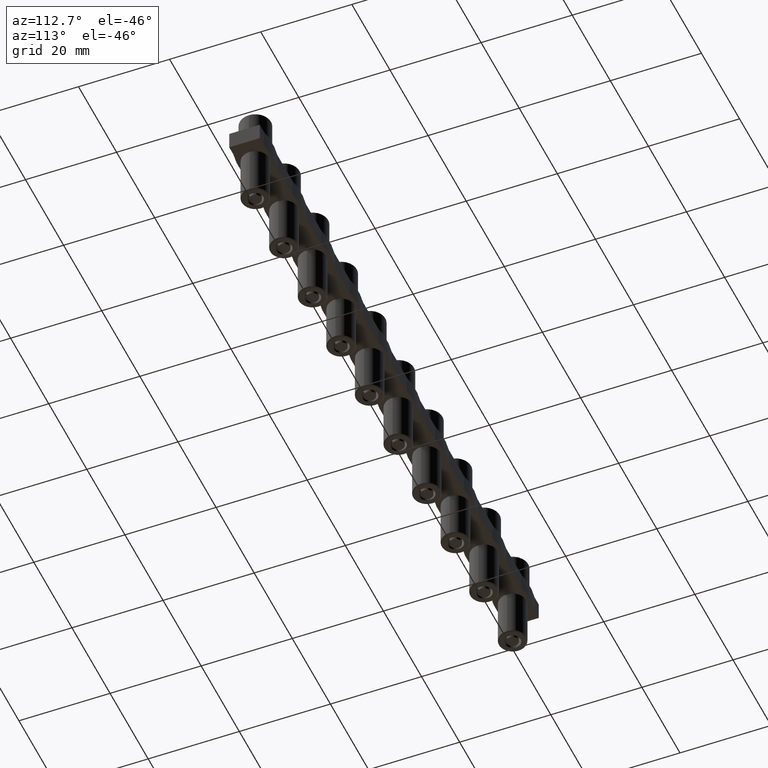
[diagram: clean part render]
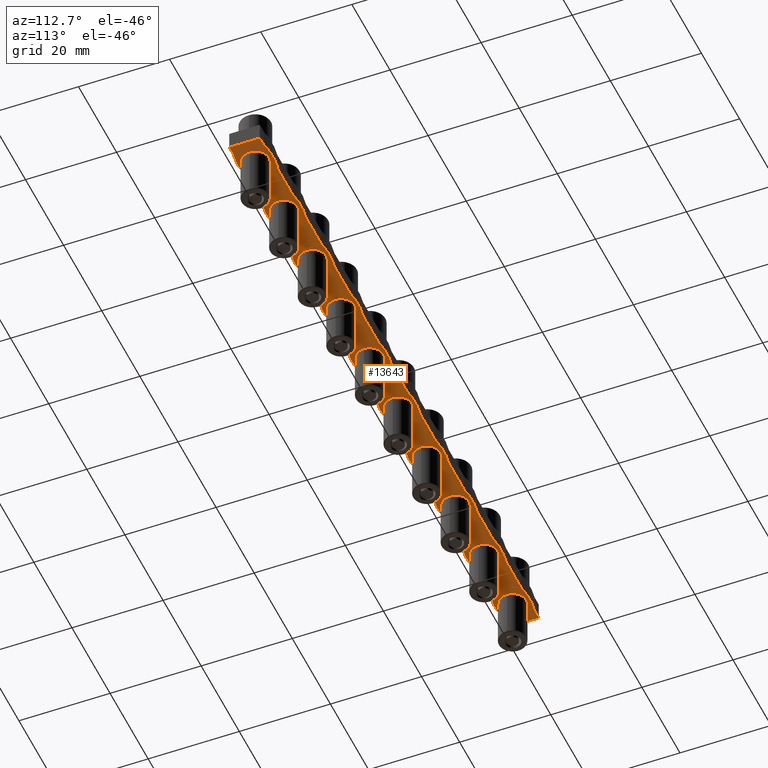
[diagram: same view with one face highlighted and labeled with its STEP entity id]
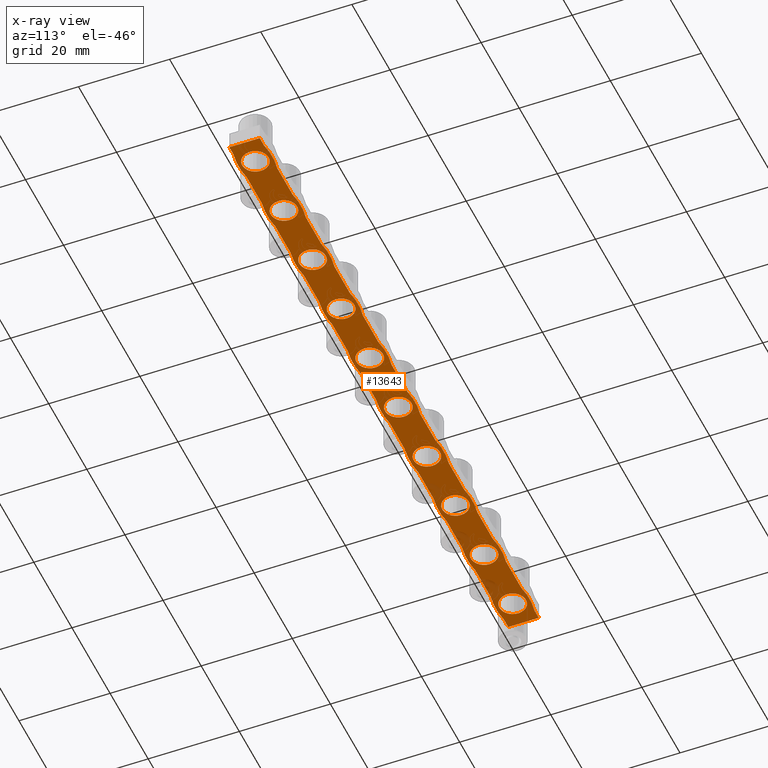
[diagram: x-ray of the same camera — body ghosted, the highlighted face saturated]
A machine part, auxiliary view. The second image highlights one B-rep face of the part: STEP entity #13643.
The next image is the same camera in x-ray: the body ghosted, the highlighted face saturated — about 4% of this face is hidden behind the body in this view.
In plain terms, the highlighted planar face has unit normal (0, 0, -1).
Its self-contained STEP definition (entity closure, byte-faithful):
#1854 = DIRECTION ( 'NONE',  ( -0.0000000000000000000, 0.0000000000000000000, -1.000000000000000000 ) ) ;
#1855 = DIRECTION ( 'NONE',  ( -1.000000000000000000, -2.491358183583711900E-016, -0.0000000000000000000 ) ) ;
#1856 = DIRECTION ( 'NONE',  ( -0.0000000000000000000, 0.0000000000000000000, -1.000000000000000000 ) ) ;
#1857 = LINE ( 'NONE', #1893, #11888 ) ;
#1859 = LINE ( 'NONE', #1890, #11859 ) ;
#1860 = DIRECTION ( 'NONE',  ( 1.000000000000000000, 7.360919982926462300E-015, 0.0000000000000000000 ) ) ;
#1861 = DIRECTION ( 'NONE',  ( -1.000000000000000000, -2.491358183583711900E-016, -0.0000000000000000000 ) ) ;
#1864 = CARTESIAN_POINT ( 'NONE',  ( 45.00167760659078200, 1.230004896535145500E-013, -4.799999999982577300 ) ) ;
#1867 = CARTESIAN_POINT ( 'NONE',  ( 105.0016776065907700, 3.652635957813867600E-013, -4.799999999982577300 ) ) ;
#1868 = DIRECTION ( 'NONE',  ( -0.0000000000000000000, 0.0000000000000000000, -1.000000000000000000 ) ) ;
#1869 = DIRECTION ( 'NONE',  ( 1.000000000000000000, 2.491358183583643400E-016, 0.0000000000000000000 ) ) ;
#1871 = DIRECTION ( 'NONE',  ( 1.000000000000000000, 2.491358183583728700E-016, 0.0000000000000000000 ) ) ;
#1872 = LINE ( 'NONE', #1892, #11858 ) ;
#1874 = DIRECTION ( 'NONE',  ( 1.000000000000000000, -0.0000000000000000000, 0.0000000000000000000 ) ) ;
#1879 = LINE ( 'NONE', #1880, #11819 ) ;
#1880 = CARTESIAN_POINT ( 'NONE',  ( 152.8500000000016400, 3.350000000000404200, -4.800000000000001600 ) ) ;
#1881 = DIRECTION ( 'NONE',  ( -4.822322090079283200E-017, 1.000000000000000000, 0.0000000000000000000 ) ) ;
#1882 = DIRECTION ( 'NONE',  ( -2.009125974575783600E-016, 1.000000000000000000, 0.0000000000000000000 ) ) ;
#1885 = CARTESIAN_POINT ( 'NONE',  ( 75.00000000000164800, -13.97500000000454500, -4.800000000000001600 ) ) ;
#1890 = CARTESIAN_POINT ( 'NONE',  ( -47.85000000000001600, 3.350000000000150200, -4.800000000000001600 ) ) ;
#1892 = CARTESIAN_POINT ( 'NONE',  ( 140.7000000000016700, 7.221084286607387900, -4.800000000000001600 ) ) ;
#1893 = CARTESIAN_POINT ( 'NONE',  ( -5.700000000000000200, 7.221084286606899400, -4.800000000000001600 ) ) ;
#1895 = CARTESIAN_POINT ( 'NONE',  ( 45.00000000000164800, -13.97500000000466600, -4.800000000000001600 ) ) ;
#1901 = DIRECTION ( 'NONE',  ( -0.0000000000000000000, 0.0000000000000000000, -1.000000000000000000 ) ) ;
#1905 = DIRECTION ( 'NONE',  ( 1.000000000000000000, 7.360919982926462300E-015, 0.0000000000000000000 ) ) ;
#1906 = DIRECTION ( 'NONE',  ( -0.0000000000000000000, 0.0000000000000000000, -1.000000000000000000 ) ) ;
#1909 = DIRECTION ( 'NONE',  ( -0.0000000000000000000, 0.0000000000000000000, -1.000000000000000000 ) ) ;
#1910 = DIRECTION ( 'NONE',  ( 1.000000000000000000, 2.944367993170585100E-015, 0.0000000000000000000 ) ) ;
#1932 = CARTESIAN_POINT ( 'NONE',  ( 15.00000000000164800, -13.97500000000478700, -4.800000000000001600 ) ) ;
#1942 = DIRECTION ( 'NONE',  ( 1.000000000000000000, -1.570329596357645900E-015, 0.0000000000000000000 ) ) ;
#1945 = CARTESIAN_POINT ( 'NONE',  ( 135.0000000000016500, -13.97500000000430400, -4.800000000000001600 ) ) ;
#1950 = LINE ( 'NONE', #1957, #11886 ) ;
#1951 = CARTESIAN_POINT ( 'NONE',  ( 197.8500000000016700, 3.350000000000585800, -4.800000000000001600 ) ) ;
#1954 = CARTESIAN_POINT ( 'NONE',  ( 105.0000000000016500, -13.97500000000442500, -4.800000000000001600 ) ) ;
#1956 = DIRECTION ( 'NONE',  ( -1.000000000000000000, -2.491358183583711900E-016, -0.0000000000000000000 ) ) ;
#1957 = CARTESIAN_POINT ( 'NONE',  ( 182.8500000000016700, 3.350000000000525900, -4.800000000000001600 ) ) ;
#1964 = LINE ( 'NONE', #1978, #11870 ) ;
#1965 = DIRECTION ( 'NONE',  ( -0.0000000000000000000, 0.0000000000000000000, -1.000000000000000000 ) ) ;
#1968 = DIRECTION ( 'NONE',  ( -1.000000000000000000, -2.491358183583711900E-016, -0.0000000000000000000 ) ) ;
#1972 = DIRECTION ( 'NONE',  ( 1.000000000000000000, 7.360919982926462300E-015, 0.0000000000000000000 ) ) ;
#1975 = DIRECTION ( 'NONE',  ( 1.000000000000000000, 2.491358183583711900E-016, 0.0000000000000000000 ) ) ;
#1978 = CARTESIAN_POINT ( 'NONE',  ( 197.8500000000016700, -3.349999999999414800, -4.800000000000001600 ) ) ;
#1980 = LINE ( 'NONE', #1951, #11855 ) ;
#1987 = DIRECTION ( 'NONE',  ( -0.0000000000000000000, 0.0000000000000000000, -1.000000000000000000 ) ) ;
#1989 = DIRECTION ( 'NONE',  ( -0.0000000000000000000, 0.0000000000000000000, -1.000000000000000000 ) ) ;
#1990 = DIRECTION ( 'NONE',  ( 1.000000000000000000, 5.594299187024113300E-015, 0.0000000000000000000 ) ) ;
#1992 = DIRECTION ( 'NONE',  ( -1.000000000000000000, -2.491358183583711900E-016, -0.0000000000000000000 ) ) ;
#2005 = LINE ( 'NONE', #2025, #11837 ) ;
#2018 = CARTESIAN_POINT ( 'NONE',  ( 75.00167760659077500, 2.441320427174506600E-013, -4.799999999982577300 ) ) ;
#2020 = CARTESIAN_POINT ( 'NONE',  ( 30.00000000000165200, -13.97500000000472700, -4.800000000000001600 ) ) ;
#2025 = CARTESIAN_POINT ( 'NONE',  ( 92.85000000000167100, 3.350000000000162200, -4.800000000000001600 ) ) ;
#2026 = DIRECTION ( 'NONE',  ( 1.000000000000000000, 2.491358183583643400E-016, 0.0000000000000000000 ) ) ;
#2030 = DIRECTION ( 'NONE',  ( 1.000000000000000000, 2.491358183583813500E-016, 0.0000000000000000000 ) ) ;
#2033 = DIRECTION ( 'NONE',  ( -0.0000000000000000000, -0.0000000000000000000, 1.000000000000000000 ) ) ;
#2043 = CARTESIAN_POINT ( 'NONE',  ( 5.128276275852789100E-015, -13.97500000000478900, -4.800000000000001600 ) ) ;
#2050 = DIRECTION ( 'NONE',  ( -0.0000000000000000000, 0.0000000000000000000, -1.000000000000000000 ) ) ;
#2055 = DIRECTION ( 'NONE',  ( -1.000000000000000000, 2.649931193853527400E-015, 0.0000000000000000000 ) ) ;
#2058 = CARTESIAN_POINT ( 'NONE',  ( 135.0016776065907600, 4.863951488453228700E-013, -4.799999999982577300 ) ) ;
#3259 = CARTESIAN_POINT ( 'NONE',  ( 92.85000000000167100, -3.349999999999838400, -4.800000000000001600 ) ) ;
#3262 = CARTESIAN_POINT ( 'NONE',  ( 122.8500000000016700, 3.350000000000283400, -4.800000000000001600 ) ) ;
#3264 = LINE ( 'NONE', #3296, #11824 ) ;
#3270 = LINE ( 'NONE', #3259, #11817 ) ;
#3279 = CARTESIAN_POINT ( 'NONE',  ( -62.85000000000001600, 3.350000000000084500, -4.800000000000001600 ) ) ;
#3286 = LINE ( 'NONE', #3290, #11816 ) ;
#3288 = LINE ( 'NONE', #3262, #11818 ) ;
#3289 = DIRECTION ( 'NONE',  ( -1.000000000000000000, -2.491358183583711900E-016, -0.0000000000000000000 ) ) ;
#3290 = CARTESIAN_POINT ( 'NONE',  ( -47.85000000000001600, -3.349999999999858400, -4.800000000000001600 ) ) ;
#3294 = DIRECTION ( 'NONE',  ( -1.000000000000000000, 0.0000000000000000000, -0.0000000000000000000 ) ) ;
#3296 = CARTESIAN_POINT ( 'NONE',  ( 107.8500000000016700, 3.350000000000222600, -4.800000000000001600 ) ) ;
#3301 = LINE ( 'NONE', #3279, #11788 ) ;
#3314 = DIRECTION ( 'NONE',  ( -0.0000000000000000000, 0.0000000000000000000, -1.000000000000000000 ) ) ;
#3316 = DIRECTION ( 'NONE',  ( 1.000000000000000000, 2.491358183583711900E-016, 0.0000000000000000000 ) ) ;
#3318 = DIRECTION ( 'NONE',  ( 1.000000000000000000, 2.491358183583712400E-016, 0.0000000000000000000 ) ) ;
#3322 = DIRECTION ( 'NONE',  ( 1.000000000000000000, -0.0000000000000000000, 0.0000000000000000000 ) ) ;
#3323 = CARTESIAN_POINT ( 'NONE',  ( 15.00167760659078200, 1.868936589578456200E-015, -4.799999999982577300 ) ) ;
#3330 = EDGE_LOOP ( 'NONE', ( #5128, #5119 ) ) ;
#3331 = EDGE_LOOP ( 'NONE', ( #5121, #5093 ) ) ;
#3333 = EDGE_LOOP ( 'NONE', ( #5188, #5158 ) ) ;
#3338 = EDGE_LOOP ( 'NONE', ( #5131, #5110 ) ) ;
#3373 = EDGE_LOOP ( 'NONE', ( #5130, #5084 ) ) ;
#3378 = EDGE_LOOP ( 'NONE', ( #5075, #5078 ) ) ;
#3379 = EDGE_LOOP ( 'NONE', ( #5120, #5142 ) ) ;
#3380 = EDGE_LOOP ( 'NONE', ( #5123, #5118, #5109, #5116, #5106, #5114, #5127, #5076, #5111, #5102, #5085, #5129, #5135, #5137, #5079, #5086, #5099, #5136, #5126, #5104, #5101, #5122, #5091, #5094, #5095, #5096, #5125, #5090, #5103, #5083, #5117, #5087, #5081, #5082, #5124, #5100, #5148, #5132, #5098, #5112, #5113, #5143, #5149, #5108 ) ) ;
#3381 = EDGE_LOOP ( 'NONE', ( #5133, #5089 ) ) ;
#3382 = EDGE_LOOP ( 'NONE', ( #5168, #5243 ) ) ;
#3383 = EDGE_LOOP ( 'NONE', ( #5175, #5163 ) ) ;
#4051 = VERTEX_POINT ( 'NONE', #17824 ) ;
#4052 = VERTEX_POINT ( 'NONE', #17827 ) ;
#4058 = VERTEX_POINT ( 'NONE', #17829 ) ;
#4059 = VERTEX_POINT ( 'NONE', #17841 ) ;
#4060 = VERTEX_POINT ( 'NONE', #17838 ) ;
#4061 = VERTEX_POINT ( 'NONE', #17843 ) ;
#4062 = VERTEX_POINT ( 'NONE', #17852 ) ;
#4063 = VERTEX_POINT ( 'NONE', #17844 ) ;
#4064 = VERTEX_POINT ( 'NONE', #17849 ) ;
#4065 = VERTEX_POINT ( 'NONE', #17805 ) ;
#4066 = VERTEX_POINT ( 'NONE', #17859 ) ;
#4067 = VERTEX_POINT ( 'NONE', #17854 ) ;
#4068 = VERTEX_POINT ( 'NONE', #17855 ) ;
#4069 = VERTEX_POINT ( 'NONE', #17856 ) ;
#4070 = VERTEX_POINT ( 'NONE', #17797 ) ;
#4072 = VERTEX_POINT ( 'NONE', #17918 ) ;
#4073 = VERTEX_POINT ( 'NONE', #17884 ) ;
#4075 = VERTEX_POINT ( 'NONE', #17881 ) ;
#4076 = VERTEX_POINT ( 'NONE', #17882 ) ;
#4077 = VERTEX_POINT ( 'NONE', #17874 ) ;
#4078 = VERTEX_POINT ( 'NONE', #17875 ) ;
#4079 = VERTEX_POINT ( 'NONE', #17908 ) ;
#4085 = VERTEX_POINT ( 'NONE', #17870 ) ;
#4087 = VERTEX_POINT ( 'NONE', #17873 ) ;
#4088 = VERTEX_POINT ( 'NONE', #17894 ) ;
#4089 = VERTEX_POINT ( 'NONE', #17887 ) ;
#4091 = VERTEX_POINT ( 'NONE', #17911 ) ;
#4092 = VERTEX_POINT ( 'NONE', #17903 ) ;
#4094 = VERTEX_POINT ( 'NONE', #17864 ) ;
#4095 = VERTEX_POINT ( 'NONE', #17876 ) ;
#4098 = VERTEX_POINT ( 'NONE', #17883 ) ;
#4100 = VERTEX_POINT ( 'NONE', #17923 ) ;
#4102 = VERTEX_POINT ( 'NONE', #17910 ) ;
#4103 = VERTEX_POINT ( 'NONE', #17862 ) ;
#4104 = VERTEX_POINT ( 'NONE', #17900 ) ;
#4105 = VERTEX_POINT ( 'NONE', #17877 ) ;
#4106 = VERTEX_POINT ( 'NONE', #17912 ) ;
#4109 = VERTEX_POINT ( 'NONE', #17896 ) ;
#4110 = VERTEX_POINT ( 'NONE', #17897 ) ;
#4111 = VERTEX_POINT ( 'NONE', #17860 ) ;
#4112 = VERTEX_POINT ( 'NONE', #17885 ) ;
#4113 = VERTEX_POINT ( 'NONE', #17863 ) ;
#4114 = VERTEX_POINT ( 'NONE', #17898 ) ;
#4143 = VERTEX_POINT ( 'NONE', #17928 ) ;
#4149 = VERTEX_POINT ( 'NONE', #17944 ) ;
#5075 = ORIENTED_EDGE ( 'NONE', *, *, #12727, .F. ) ;
#5076 = ORIENTED_EDGE ( 'NONE', *, *, #12844, .T. ) ;
#5078 = ORIENTED_EDGE ( 'NONE', *, *, #12914, .F. ) ;
#5079 = ORIENTED_EDGE ( 'NONE', *, *, #12909, .T. ) ;
#5081 = ORIENTED_EDGE ( 'NONE', *, *, #12866, .F. ) ;
#5082 = ORIENTED_EDGE ( 'NONE', *, *, #12899, .T. ) ;
#5083 = ORIENTED_EDGE ( 'NONE', *, *, #12898, .T. ) ;
#5084 = ORIENTED_EDGE ( 'NONE', *, *, #12872, .F. ) ;
#5085 = ORIENTED_EDGE ( 'NONE', *, *, #12892, .F. ) ;
#5086 = ORIENTED_EDGE ( 'NONE', *, *, #12886, .T. ) ;
#5087 = ORIENTED_EDGE ( 'NONE', *, *, #12919, .T. ) ;
#5089 = ORIENTED_EDGE ( 'NONE', *, *, #12752, .T. ) ;
#5090 = ORIENTED_EDGE ( 'NONE', *, *, #12928, .T. ) ;
#5091 = ORIENTED_EDGE ( 'NONE', *, *, #12860, .T. ) ;
#5093 = ORIENTED_EDGE ( 'NONE', *, *, #12878, .F. ) ;
#5094 = ORIENTED_EDGE ( 'NONE', *, *, #12925, .T. ) ;
#5095 = ORIENTED_EDGE ( 'NONE', *, *, #12921, .T. ) ;
#5096 = ORIENTED_EDGE ( 'NONE', *, *, #12945, .T. ) ;
#5098 = ORIENTED_EDGE ( 'NONE', *, *, #12933, .F. ) ;
#5099 = ORIENTED_EDGE ( 'NONE', *, *, #12824, .T. ) ;
#5100 = ORIENTED_EDGE ( 'NONE', *, *, #12940, .T. ) ;
#5101 = ORIENTED_EDGE ( 'NONE', *, *, #12902, .T. ) ;
#5102 = ORIENTED_EDGE ( 'NONE', *, *, #12868, .T. ) ;
#5103 = ORIENTED_EDGE ( 'NONE', *, *, #12911, .F. ) ;
#5104 = ORIENTED_EDGE ( 'NONE', *, *, #12918, .T. ) ;
#5106 = ORIENTED_EDGE ( 'NONE', *, *, #12895, .F. ) ;
#5108 = ORIENTED_EDGE ( 'NONE', *, *, #12875, .T. ) ;
#5109 = ORIENTED_EDGE ( 'NONE', *, *, #12846, .F. ) ;
#5110 = ORIENTED_EDGE ( 'NONE', *, *, #12901, .F. ) ;
#5111 = ORIENTED_EDGE ( 'NONE', *, *, #12831, .F. ) ;
#5112 = ORIENTED_EDGE ( 'NONE', *, *, #12926, .T. ) ;
#5113 = ORIENTED_EDGE ( 'NONE', *, *, #12934, .F. ) ;
#5114 = ORIENTED_EDGE ( 'NONE', *, *, #12865, .T. ) ;
#5116 = ORIENTED_EDGE ( 'NONE', *, *, #12888, .T. ) ;
#5117 = ORIENTED_EDGE ( 'NONE', *, *, #12910, .F. ) ;
#5118 = ORIENTED_EDGE ( 'NONE', *, *, #12854, .T. ) ;
#5119 = ORIENTED_EDGE ( 'NONE', *, *, #12874, .F. ) ;
#5120 = ORIENTED_EDGE ( 'NONE', *, *, #13495, .F. ) ;
#5121 = ORIENTED_EDGE ( 'NONE', *, *, #12773, .F. ) ;
#5122 = ORIENTED_EDGE ( 'NONE', *, *, #12965, .F. ) ;
#5123 = ORIENTED_EDGE ( 'NONE', *, *, #12845, .F. ) ;
#5124 = ORIENTED_EDGE ( 'NONE', *, *, #12912, .F. ) ;
#5125 = ORIENTED_EDGE ( 'NONE', *, *, #12952, .F. ) ;
#5126 = ORIENTED_EDGE ( 'NONE', *, *, #12900, .T. ) ;
#5127 = ORIENTED_EDGE ( 'NONE', *, *, #12889, .F. ) ;
#5128 = ORIENTED_EDGE ( 'NONE', *, *, #13528, .F. ) ;
#5129 = ORIENTED_EDGE ( 'NONE', *, *, #12882, .T. ) ;
#5130 = ORIENTED_EDGE ( 'NONE', *, *, #12833, .F. ) ;
#5131 = ORIENTED_EDGE ( 'NONE', *, *, #12828, .F. ) ;
#5132 = ORIENTED_EDGE ( 'NONE', *, *, #12863, .T. ) ;
#5133 = ORIENTED_EDGE ( 'NONE', *, *, #12881, .T. ) ;
#5135 = ORIENTED_EDGE ( 'NONE', *, *, #12908, .F. ) ;
#5136 = ORIENTED_EDGE ( 'NONE', *, *, #12808, .F. ) ;
#5137 = ORIENTED_EDGE ( 'NONE', *, *, #12885, .T. ) ;
#5142 = ORIENTED_EDGE ( 'NONE', *, *, #12861, .F. ) ;
#5143 = ORIENTED_EDGE ( 'NONE', *, *, #12915, .F. ) ;
#5148 = ORIENTED_EDGE ( 'NONE', *, *, #12879, .F. ) ;
#5149 = ORIENTED_EDGE ( 'NONE', *, *, #12941, .F. ) ;
#5158 = ORIENTED_EDGE ( 'NONE', *, *, #12970, .F. ) ;
#5163 = ORIENTED_EDGE ( 'NONE', *, *, #12922, .F. ) ;
#5168 = ORIENTED_EDGE ( 'NONE', *, *, #13532, .F. ) ;
#5175 = ORIENTED_EDGE ( 'NONE', *, *, #13454, .F. ) ;
#5188 = ORIENTED_EDGE ( 'NONE', *, *, #13389, .F. ) ;
#5243 = ORIENTED_EDGE ( 'NONE', *, *, #12956, .F. ) ;
#5984 = VERTEX_POINT ( 'NONE', #9284 ) ;
#5992 = VERTEX_POINT ( 'NONE', #9300 ) ;
#6035 = VERTEX_POINT ( 'NONE', #9359 ) ;
#6053 = VERTEX_POINT ( 'NONE', #9315 ) ;
#6060 = VERTEX_POINT ( 'NONE', #9417 ) ;
#6062 = VERTEX_POINT ( 'NONE', #9386 ) ;
#6067 = VERTEX_POINT ( 'NONE', #9419 ) ;
#6099 = VERTEX_POINT ( 'NONE', #9393 ) ;
#6111 = VERTEX_POINT ( 'NONE', #9456 ) ;
#6119 = VERTEX_POINT ( 'NONE', #9466 ) ;
#6125 = VERTEX_POINT ( 'NONE', #9444 ) ;
#6129 = VERTEX_POINT ( 'NONE', #9468 ) ;
#6181 = VERTEX_POINT ( 'NONE', #9544 ) ;
#6201 = VERTEX_POINT ( 'NONE', #9529 ) ;
#6233 = VERTEX_POINT ( 'NONE', #9495 ) ;
#6236 = VERTEX_POINT ( 'NONE', #9561 ) ;
#6237 = VERTEX_POINT ( 'NONE', #9593 ) ;
#6239 = VERTEX_POINT ( 'NONE', #9574 ) ;
#6242 = VERTEX_POINT ( 'NONE', #9565 ) ;
#9284 = CARTESIAN_POINT ( 'NONE',  ( 137.9016776066017700, 4.871176427185649500E-013, -4.799999999982577300 ) ) ;
#9300 = CARTESIAN_POINT ( 'NONE',  ( 132.1016776065797600, 4.852989273754059900E-013, -4.799999999982577300 ) ) ;
#9315 = CARTESIAN_POINT ( 'NONE',  ( 107.9016776066017800, 3.659860896546287900E-013, -4.799999999982577300 ) ) ;
#9359 = CARTESIAN_POINT ( 'NONE',  ( 122.9016776066017800, 4.265518661865968200E-013, -4.799999999982577300 ) ) ;
#9386 = CARTESIAN_POINT ( 'NONE',  ( 102.1016776065797700, 3.641673743114699900E-013, -4.799999999982577300 ) ) ;
#9393 = CARTESIAN_POINT ( 'NONE',  ( 117.1016776065797700, 4.247331508434380100E-013, -4.799999999982577300 ) ) ;
#9417 = CARTESIAN_POINT ( 'NONE',  ( 92.90167760660178000, 3.054203131226607100E-013, -4.799999999982577300 ) ) ;
#9419 = CARTESIAN_POINT ( 'NONE',  ( 87.10167760657977000, 3.036015977795019100E-013, -4.799999999982577300 ) ) ;
#9444 = CARTESIAN_POINT ( 'NONE',  ( 77.90167760660178000, 2.448545365906926400E-013, -4.799999999982577300 ) ) ;
#9456 = CARTESIAN_POINT ( 'NONE',  ( 62.90167760660178700, 1.842887600587246300E-013, -4.799999999982577300 ) ) ;
#9466 = CARTESIAN_POINT ( 'NONE',  ( 57.10167760657977700, 1.824700447155658000E-013, -4.799999999982577300 ) ) ;
#9468 = CARTESIAN_POINT ( 'NONE',  ( 72.10167760657977000, 2.430358212475338300E-013, -4.799999999982577300 ) ) ;
#9495 = CARTESIAN_POINT ( 'NONE',  ( 42.10167760657977700, 1.219042681835977200E-013, -4.799999999982577300 ) ) ;
#9529 = CARTESIAN_POINT ( 'NONE',  ( -2.901677606600135700, 0.0000000000000000000, -4.799999999982577300 ) ) ;
#9544 = CARTESIAN_POINT ( 'NONE',  ( 2.898322393421874000, 3.612708057521423400E-016, -4.799999999982577300 ) ) ;
#9561 = CARTESIAN_POINT ( 'NONE',  ( 47.90167760660178700, 1.237229835267565800E-013, -4.799999999982577300 ) ) ;
#9565 = CARTESIAN_POINT ( 'NONE',  ( -3.500000000000049300, -3.350000000000086700, -4.800000000000001600 ) ) ;
#9570 = DIRECTION ( 'NONE',  ( 1.000000000000000000, 2.491358183583728700E-016, 0.0000000000000000000 ) ) ;
#9574 = CARTESIAN_POINT ( 'NONE',  ( 27.10167760657977700, 6.133849165162969700E-014, -4.799999999982577300 ) ) ;
#9582 = CARTESIAN_POINT ( 'NONE',  ( 45.00167760659078200, 1.230004896535145500E-013, -4.799999999982577300 ) ) ;
#9588 = DIRECTION ( 'NONE',  ( -0.0000000000000000000, 0.0000000000000000000, -1.000000000000000000 ) ) ;
#9593 = CARTESIAN_POINT ( 'NONE',  ( 32.90167760660178700, 6.315720699478853000E-014, -4.799999999982577300 ) ) ;
#9674 = CARTESIAN_POINT ( 'NONE',  ( -0.001677606589130925800, 0.0000000000000000000, -4.799999999982577300 ) ) ;
#9700 = DIRECTION ( 'NONE',  ( -0.0000000000000000000, -0.0000000000000000000, 1.000000000000000000 ) ) ;
#9701 = DIRECTION ( 'NONE',  ( -1.000000000000000000, 0.0000000000000000000, 0.0000000000000000000 ) ) ;
#9714 = CARTESIAN_POINT ( 'NONE',  ( 60.00167760659078200, 1.835662661854826300E-013, -4.799999999982577300 ) ) ;
#9720 = DIRECTION ( 'NONE',  ( -0.0000000000000000000, 0.0000000000000000000, -1.000000000000000000 ) ) ;
#9733 = DIRECTION ( 'NONE',  ( 1.000000000000000000, 2.491358183583728700E-016, 0.0000000000000000000 ) ) ;
#9854 = DIRECTION ( 'NONE',  ( 1.000000000000000000, 2.491358183583643400E-016, 0.0000000000000000000 ) ) ;
#9872 = CARTESIAN_POINT ( 'NONE',  ( 90.00167760659077500, 3.046978192494187300E-013, -4.799999999982577300 ) ) ;
#9897 = DIRECTION ( 'NONE',  ( -0.0000000000000000000, 0.0000000000000000000, -1.000000000000000000 ) ) ;
#9901 = CARTESIAN_POINT ( 'NONE',  ( 1.734289795103002200E-015, 13.97500000000478900, -4.800000000000001600 ) ) ;
#9912 = DIRECTION ( 'NONE',  ( -1.000000000000000000, 0.0000000000000000000, 0.0000000000000000000 ) ) ;
#9930 = DIRECTION ( 'NONE',  ( -0.0000000000000000000, 0.0000000000000000000, -1.000000000000000000 ) ) ;
#9935 = DIRECTION ( 'NONE',  ( -0.0000000000000000000, -0.0000000000000000000, 1.000000000000000000 ) ) ;
#9939 = DIRECTION ( 'NONE',  ( 1.000000000000000000, 2.491358183583643400E-016, 0.0000000000000000000 ) ) ;
#9940 = CARTESIAN_POINT ( 'NONE',  ( 75.00167760659077500, 2.441320427174506600E-013, -4.799999999982577300 ) ) ;
#9949 = CARTESIAN_POINT ( 'NONE',  ( 90.00000000000164800, -13.97500000000448300, -4.800000000000001600 ) ) ;
#9963 = DIRECTION ( 'NONE',  ( -1.000000000000000000, 0.0000000000000000000, -0.0000000000000000000 ) ) ;
#9968 = DIRECTION ( 'NONE',  ( -0.0000000000000000000, 0.0000000000000000000, -1.000000000000000000 ) ) ;
#10001 = CARTESIAN_POINT ( 'NONE',  ( -62.85000000000001600, -3.349999999999918800, -4.800000000000001600 ) ) ;
#10003 = LINE ( 'NONE', #10001, #11667 ) ;
#10007 = DIRECTION ( 'NONE',  ( 1.000000000000000000, -2.453639994308822700E-015, 0.0000000000000000000 ) ) ;
#10056 = CARTESIAN_POINT ( 'NONE',  ( 15.00167760659078200, 1.868936589578456200E-015, -4.799999999982577300 ) ) ;
#10060 = DIRECTION ( 'NONE',  ( -0.0000000000000000000, 0.0000000000000000000, -1.000000000000000000 ) ) ;
#10078 = LINE ( 'NONE', #10106, #11692 ) ;
#10082 = DIRECTION ( 'NONE',  ( 1.000000000000000000, 2.491358183583711900E-016, 0.0000000000000000000 ) ) ;
#10084 = CARTESIAN_POINT ( 'NONE',  ( 30.00167760659078200, 6.243471312154649800E-014, -4.799999999982577300 ) ) ;
#10094 = DIRECTION ( 'NONE',  ( 1.000000000000000000, 2.491358183583728700E-016, 0.0000000000000000000 ) ) ;
#10106 = CARTESIAN_POINT ( 'NONE',  ( 122.8500000000016700, -3.349999999999717200, -4.800000000000001600 ) ) ;
#10117 = DIRECTION ( 'NONE',  ( 1.000000000000000000, 2.491358183583712400E-016, 0.0000000000000000000 ) ) ;
#10131 = DIRECTION ( 'NONE',  ( -0.0000000000000000000, 0.0000000000000000000, -1.000000000000000000 ) ) ;
#10138 = DIRECTION ( 'NONE',  ( 1.000000000000000000, 2.491358183583711900E-016, 0.0000000000000000000 ) ) ;
#10144 = CARTESIAN_POINT ( 'NONE',  ( 75.00000000000164800, 13.97500000000503400, -4.800000000000001600 ) ) ;
#10147 = DIRECTION ( 'NONE',  ( 1.000000000000000000, 2.061057595219411100E-015, 0.0000000000000000000 ) ) ;
#10161 = LINE ( 'NONE', #10210, #11710 ) ;
#10177 = DIRECTION ( 'NONE',  ( -1.000000000000000000, 0.0000000000000000000, -0.0000000000000000000 ) ) ;
#10187 = DIRECTION ( 'NONE',  ( 1.000000000000000000, 2.491358183583711900E-016, 0.0000000000000000000 ) ) ;
#10196 = LINE ( 'NONE', #10198, #11731 ) ;
#10198 = CARTESIAN_POINT ( 'NONE',  ( 182.8500000000016700, -3.349999999999474700, -4.800000000000001600 ) ) ;
#10210 = CARTESIAN_POINT ( 'NONE',  ( 167.8500000000016700, -3.349999999999535600, -4.800000000000001600 ) ) ;
#10227 = DIRECTION ( 'NONE',  ( -0.0000000000000000000, 0.0000000000000000000, -1.000000000000000000 ) ) ;
#10278 = CARTESIAN_POINT ( 'NONE',  ( 120.0000000000016500, 13.97500000000521500, -4.800000000000001600 ) ) ;
#10285 = DIRECTION ( 'NONE',  ( 1.000000000000000000, 2.061057595219411100E-015, 0.0000000000000000000 ) ) ;
#10306 = DIRECTION ( 'NONE',  ( -0.0000000000000000000, 0.0000000000000000000, -1.000000000000000000 ) ) ;
#10319 = DIRECTION ( 'NONE',  ( -0.0000000000000000000, 0.0000000000000000000, -1.000000000000000000 ) ) ;
#10331 = LINE ( 'NONE', #10347, #11737 ) ;
#10346 = DIRECTION ( 'NONE',  ( 1.000000000000000000, -0.0000000000000000000, 0.0000000000000000000 ) ) ;
#10347 = CARTESIAN_POINT ( 'NONE',  ( -62.85000000000001600, 3.350000000000089400, -4.800000000000001600 ) ) ;
#10359 = CARTESIAN_POINT ( 'NONE',  ( 120.0000000000016500, -13.97500000000436400, -4.800000000000001600 ) ) ;
#10362 = DIRECTION ( 'NONE',  ( -0.0000000000000000000, 0.0000000000000000000, -1.000000000000000000 ) ) ;
#10369 = DIRECTION ( 'NONE',  ( 1.000000000000000000, 2.491358183583643400E-016, 0.0000000000000000000 ) ) ;
#10374 = CARTESIAN_POINT ( 'NONE',  ( 120.0016776065907700, 4.258293723133548400E-013, -4.799999999982577300 ) ) ;
#10377 = DIRECTION ( 'NONE',  ( 1.000000000000000000, -2.453639994308822700E-015, 0.0000000000000000000 ) ) ;
#10396 = CARTESIAN_POINT ( 'NONE',  ( 90.00167760659077500, 3.046978192494187300E-013, -4.799999999982577300 ) ) ;
#10398 = DIRECTION ( 'NONE',  ( 1.000000000000000000, 2.491358183583643400E-016, 0.0000000000000000000 ) ) ;
#10400 = DIRECTION ( 'NONE',  ( -0.0000000000000000000, 0.0000000000000000000, -1.000000000000000000 ) ) ;
#10404 = CARTESIAN_POINT ( 'NONE',  ( 135.0000000000016500, 13.97500000000527500, -4.800000000000001600 ) ) ;
#10405 = DIRECTION ( 'NONE',  ( -0.0000000000000000000, 0.0000000000000000000, -1.000000000000000000 ) ) ;
#10407 = DIRECTION ( 'NONE',  ( 1.000000000000000000, 2.061057595219409500E-015, 0.0000000000000000000 ) ) ;
#10428 = DIRECTION ( 'NONE',  ( -1.000000000000000000, -2.491358183583711900E-016, -0.0000000000000000000 ) ) ;
#10433 = CARTESIAN_POINT ( 'NONE',  ( 30.00167760659078200, 6.243471312154649800E-014, -4.799999999982577300 ) ) ;
#10443 = CARTESIAN_POINT ( 'NONE',  ( 137.8500000000016700, 3.350000000000343800, -4.800000000000001600 ) ) ;
#10445 = DIRECTION ( 'NONE',  ( 1.000000000000000000, 2.944367993170586000E-016, 0.0000000000000000000 ) ) ;
#10449 = DIRECTION ( 'NONE',  ( -0.0000000000000000000, 0.0000000000000000000, -1.000000000000000000 ) ) ;
#10452 = CARTESIAN_POINT ( 'NONE',  ( 60.00000000000164100, 13.97500000000497300, -4.800000000000001600 ) ) ;
#10455 = DIRECTION ( 'NONE',  ( -0.0000000000000000000, 0.0000000000000000000, -1.000000000000000000 ) ) ;
#10457 = DIRECTION ( 'NONE',  ( 1.000000000000000000, 2.061057595219411100E-015, 0.0000000000000000000 ) ) ;
#10460 = LINE ( 'NONE', #10443, #11757 ) ;
#10464 = DIRECTION ( 'NONE',  ( -0.0000000000000000000, 0.0000000000000000000, -1.000000000000000000 ) ) ;
#10467 = CARTESIAN_POINT ( 'NONE',  ( 90.00000000000164800, 13.97500000000509400, -4.800000000000001600 ) ) ;
#10472 = DIRECTION ( 'NONE',  ( 1.000000000000000000, 2.491358183583728700E-016, 0.0000000000000000000 ) ) ;
#10474 = DIRECTION ( 'NONE',  ( 1.000000000000000000, 2.491358183583728700E-016, 0.0000000000000000000 ) ) ;
#10478 = DIRECTION ( 'NONE',  ( 1.000000000000000000, 2.944367993170586000E-016, 0.0000000000000000000 ) ) ;
#10482 = CARTESIAN_POINT ( 'NONE',  ( -0.001677606589130925800, 0.0000000000000000000, -4.799999999982577300 ) ) ;
#10485 = LINE ( 'NONE', #10510, #11822 ) ;
#10493 = CARTESIAN_POINT ( 'NONE',  ( 45.00000000000164100, 13.97500000000491300, -4.800000000000001600 ) ) ;
#10495 = CARTESIAN_POINT ( 'NONE',  ( 60.00167760659078200, 1.835662661854826300E-013, -4.799999999982577300 ) ) ;
#10510 = CARTESIAN_POINT ( 'NONE',  ( 167.8500000000016700, 3.350000000000465100, -4.800000000000001600 ) ) ;
#10513 = DIRECTION ( 'NONE',  ( -0.0000000000000000000, -0.0000000000000000000, 1.000000000000000000 ) ) ;
#10517 = DIRECTION ( 'NONE',  ( -0.0000000000000000000, 0.0000000000000000000, -1.000000000000000000 ) ) ;
#10526 = DIRECTION ( 'NONE',  ( -1.000000000000000000, 0.0000000000000000000, 0.0000000000000000000 ) ) ;
#10531 = DIRECTION ( 'NONE',  ( -0.0000000000000000000, 0.0000000000000000000, -1.000000000000000000 ) ) ;
#10539 = DIRECTION ( 'NONE',  ( 1.000000000000000000, 2.944367993170586000E-016, 0.0000000000000000000 ) ) ;
#10544 = CARTESIAN_POINT ( 'NONE',  ( 15.00000000000164500, 13.97500000000479000, -4.800000000000001600 ) ) ;
#10546 = DIRECTION ( 'NONE',  ( -0.0000000000000000000, 0.0000000000000000000, -1.000000000000000000 ) ) ;
#10551 = CARTESIAN_POINT ( 'NONE',  ( 30.00000000000164500, 13.97500000000485100, -4.800000000000001600 ) ) ;
#10554 = DIRECTION ( 'NONE',  ( -1.000000000000000000, -2.491358183583711900E-016, -0.0000000000000000000 ) ) ;
#10556 = DIRECTION ( 'NONE',  ( -0.0000000000000000000, 0.0000000000000000000, -1.000000000000000000 ) ) ;
#10572 = CARTESIAN_POINT ( 'NONE',  ( 60.00000000000164800, -13.97500000000460600, -4.800000000000001600 ) ) ;
#10574 = DIRECTION ( 'NONE',  ( -0.0000000000000000000, 0.0000000000000000000, -1.000000000000000000 ) ) ;
#10576 = DIRECTION ( 'NONE',  ( 1.000000000000000000, -2.453639994308822700E-015, 0.0000000000000000000 ) ) ;
#10580 = DIRECTION ( 'NONE',  ( 1.000000000000000000, 2.061057595219411100E-015, 0.0000000000000000000 ) ) ;
#10591 = CARTESIAN_POINT ( 'NONE',  ( 107.8500000000016700, -3.349999999999778000, -4.800000000000001600 ) ) ;
#10594 = CARTESIAN_POINT ( 'NONE',  ( 137.8500000000016700, -3.349999999999656800, -4.800000000000001600 ) ) ;
#10597 = DIRECTION ( 'NONE',  ( 1.000000000000000000, 2.491358183583711900E-016, 0.0000000000000000000 ) ) ;
#10601 = DIRECTION ( 'NONE',  ( 1.000000000000000000, 2.491358183583711900E-016, 0.0000000000000000000 ) ) ;
#10603 = CARTESIAN_POINT ( 'NONE',  ( 105.0000000000016500, 13.97500000000515300, -4.800000000000001600 ) ) ;
#10604 = LINE ( 'NONE', #10642, #11774 ) ;
#10605 = DIRECTION ( 'NONE',  ( -0.0000000000000000000, 0.0000000000000000000, -1.000000000000000000 ) ) ;
#10610 = DIRECTION ( 'NONE',  ( 1.000000000000000000, 2.944367993170586000E-016, 0.0000000000000000000 ) ) ;
#10616 = LINE ( 'NONE', #10625, #11815 ) ;
#10622 = LINE ( 'NONE', #10591, #11783 ) ;
#10625 = CARTESIAN_POINT ( 'NONE',  ( 152.8500000000016400, -3.349999999999596400, -4.800000000000001600 ) ) ;
#10628 = DIRECTION ( 'NONE',  ( 1.000000000000000000, 2.491358183583711900E-016, 0.0000000000000000000 ) ) ;
#10638 = LINE ( 'NONE', #10594, #11801 ) ;
#10642 = CARTESIAN_POINT ( 'NONE',  ( -62.85000000000001600, -3.349999999999916600, -4.800000000000001600 ) ) ;
#11302 = AXIS2_PLACEMENT_3D ( 'NONE', #15345, #15347, #15365 ) ;
#11334 = CIRCLE ( 'NONE', #11302, 2.900000000011004900 ) ;
#11388 = CIRCLE ( 'NONE', #11406, 2.900000000011004900 ) ;
#11406 = AXIS2_PLACEMENT_3D ( 'NONE', #15586, #15583, #15616 ) ;
#11453 = AXIS2_PLACEMENT_3D ( 'NONE', #15719, #15728, #15713 ) ;
#11468 = CIRCLE ( 'NONE', #11453, 2.900000000011004900 ) ;
#11480 = AXIS2_PLACEMENT_3D ( 'NONE', #9940, #9930, #9939 ) ;
#11482 = CIRCLE ( 'NONE', #11480, 2.900000000011004900 ) ;
#11483 = CIRCLE ( 'NONE', #11484, 2.900000000011004900 ) ;
#11484 = AXIS2_PLACEMENT_3D ( 'NONE', #9872, #9897, #9854 ) ;
#11555 = AXIS2_PLACEMENT_3D ( 'NONE', #9582, #9588, #9570 ) ;
#11572 = CIRCLE ( 'NONE', #11555, 2.900000000011004900 ) ;
#11587 = AXIS2_PLACEMENT_3D ( 'NONE', #9674, #9700, #9701 ) ;
#11598 = AXIS2_PLACEMENT_3D ( 'NONE', #9714, #9720, #9733 ) ;
#11601 = CIRCLE ( 'NONE', #11587, 2.900000000011004900 ) ;
#11620 = CIRCLE ( 'NONE', #11598, 2.900000000011004900 ) ;
#11667 = VECTOR ( 'NONE', #9963, 1000.000000000000000 ) ;
#11679 = CIRCLE ( 'NONE', #11700, 2.900000000011004900 ) ;
#11692 = VECTOR ( 'NONE', #10082, 1000.000000000000000 ) ;
#11700 = AXIS2_PLACEMENT_3D ( 'NONE', #10056, #10131, #10117 ) ;
#11701 = AXIS2_PLACEMENT_3D ( 'NONE', #9901, #9935, #9912 ) ;
#11702 = CIRCLE ( 'NONE', #11701, 17.67500000000478600 ) ;
#11708 = CIRCLE ( 'NONE', #11733, 17.67500000000478300 ) ;
#11710 = VECTOR ( 'NONE', #10138, 1000.000000000000000 ) ;
#11714 = CIRCLE ( 'NONE', #11717, 17.67500000000479000 ) ;
#11717 = AXIS2_PLACEMENT_3D ( 'NONE', #10452, #10464, #10445 ) ;
#11719 = CIRCLE ( 'NONE', #11750, 17.67500000000478300 ) ;
#11723 = AXIS2_PLACEMENT_3D ( 'NONE', #10374, #10319, #10369 ) ;
#11727 = AXIS2_PLACEMENT_3D ( 'NONE', #10433, #10400, #10472 ) ;
#11729 = CIRCLE ( 'NONE', #11751, 2.900000000011004900 ) ;
#11731 = VECTOR ( 'NONE', #10187, 1000.000000000000000 ) ;
#11733 = AXIS2_PLACEMENT_3D ( 'NONE', #10467, #10455, #10457 ) ;
#11737 = VECTOR ( 'NONE', #10346, 1000.000000000000000 ) ;
#11739 = CIRCLE ( 'NONE', #11762, 17.67500000000478300 ) ;
#11743 = CIRCLE ( 'NONE', #11727, 2.900000000011004900 ) ;
#11750 = AXIS2_PLACEMENT_3D ( 'NONE', #10144, #10227, #10147 ) ;
#11751 = AXIS2_PLACEMENT_3D ( 'NONE', #10084, #10060, #10094 ) ;
#11757 = VECTOR ( 'NONE', #10428, 1000.000000000000000 ) ;
#11762 = AXIS2_PLACEMENT_3D ( 'NONE', #10278, #10306, #10285 ) ;
#11766 = CIRCLE ( 'NONE', #11723, 2.900000000011004900 ) ;
#11767 = CIRCLE ( 'NONE', #11770, 17.67500000000478300 ) ;
#11770 = AXIS2_PLACEMENT_3D ( 'NONE', #10359, #10362, #10377 ) ;
#11771 = CIRCLE ( 'NONE', #11833, 17.67500000000478300 ) ;
#11774 = VECTOR ( 'NONE', #10177, 1000.000000000000000 ) ;
#11776 = CIRCLE ( 'NONE', #11793, 17.67500000000478300 ) ;
#11777 = CIRCLE ( 'NONE', #11825, 2.900000000011004900 ) ;
#11778 = CIRCLE ( 'NONE', #11829, 17.67500000000479000 ) ;
#11780 = CIRCLE ( 'NONE', #11800, 17.67500000000479000 ) ;
#11782 = CIRCLE ( 'NONE', #11810, 17.67500000000479700 ) ;
#11783 = VECTOR ( 'NONE', #10601, 1000.000000000000000 ) ;
#11784 = CIRCLE ( 'NONE', #11794, 17.67500000000478300 ) ;
#11787 = CIRCLE ( 'NONE', #11827, 2.900000000011004900 ) ;
#11788 = VECTOR ( 'NONE', #3322, 1000.000000000000000 ) ;
#11793 = AXIS2_PLACEMENT_3D ( 'NONE', #10603, #10605, #10580 ) ;
#11794 = AXIS2_PLACEMENT_3D ( 'NONE', #9949, #9968, #10007 ) ;
#11795 = AXIS2_PLACEMENT_3D ( 'NONE', #3323, #3314, #3318 ) ;
#11796 = CIRCLE ( 'NONE', #11813, 17.67500000000479000 ) ;
#11800 = AXIS2_PLACEMENT_3D ( 'NONE', #10551, #10517, #10539 ) ;
#11801 = VECTOR ( 'NONE', #10628, 1000.000000000000000 ) ;
#11806 = CIRCLE ( 'NONE', #11809, 2.900000000011004900 ) ;
#11809 = AXIS2_PLACEMENT_3D ( 'NONE', #10495, #10531, #10474 ) ;
#11810 = AXIS2_PLACEMENT_3D ( 'NONE', #10404, #10405, #10407 ) ;
#11813 = AXIS2_PLACEMENT_3D ( 'NONE', #10544, #10546, #10610 ) ;
#11815 = VECTOR ( 'NONE', #10597, 1000.000000000000000 ) ;
#11816 = VECTOR ( 'NONE', #3294, 1000.000000000000000 ) ;
#11817 = VECTOR ( 'NONE', #3316, 1000.000000000000000 ) ;
#11818 = VECTOR ( 'NONE', #3289, 1000.000000000000000 ) ;
#11819 = VECTOR ( 'NONE', #1855, 1000.000000000000000 ) ;
#11822 = VECTOR ( 'NONE', #10554, 1000.000000000000000 ) ;
#11823 = CIRCLE ( 'NONE', #11882, 2.900000000011004900 ) ;
#11824 = VECTOR ( 'NONE', #1861, 1000.000000000000000 ) ;
#11825 = AXIS2_PLACEMENT_3D ( 'NONE', #10482, #10513, #10526 ) ;
#11826 = CIRCLE ( 'NONE', #11795, 2.900000000011004900 ) ;
#11827 = AXIS2_PLACEMENT_3D ( 'NONE', #10396, #10449, #10398 ) ;
#11829 = AXIS2_PLACEMENT_3D ( 'NONE', #10493, #10556, #10478 ) ;
#11833 = AXIS2_PLACEMENT_3D ( 'NONE', #10572, #10574, #10576 ) ;
#11834 = CIRCLE ( 'NONE', #11867, 17.67500000000479700 ) ;
#11835 = CIRCLE ( 'NONE', #11868, 17.67500000000479700 ) ;
#11837 = VECTOR ( 'NONE', #1992, 1000.000000000000000 ) ;
#11838 = CIRCLE ( 'NONE', #11853, 17.67500000000479000 ) ;
#11839 = AXIS2_PLACEMENT_3D ( 'NONE', #1867, #1868, #1869 ) ;
#11840 = CIRCLE ( 'NONE', #11839, 2.900000000011004900 ) ;
#11843 = AXIS2_PLACEMENT_3D ( 'NONE', #1954, #1965, #1972 ) ;
#11844 = AXIS2_PLACEMENT_3D ( 'NONE', #1885, #1854, #1860 ) ;
#11853 = AXIS2_PLACEMENT_3D ( 'NONE', #1932, #1901, #1942 ) ;
#11854 = AXIS2_PLACEMENT_3D ( 'NONE', #2020, #1987, #1990 ) ;
#11855 = VECTOR ( 'NONE', #1956, 1000.000000000000000 ) ;
#11858 = VECTOR ( 'NONE', #1881, 1000.000000000000000 ) ;
#11859 = VECTOR ( 'NONE', #1874, 1000.000000000000000 ) ;
#11860 = AXIS2_PLACEMENT_3D ( 'NONE', #2018, #1989, #2026 ) ;
#11862 = CIRCLE ( 'NONE', #11860, 2.900000000011004900 ) ;
#11867 = AXIS2_PLACEMENT_3D ( 'NONE', #1945, #1906, #1905 ) ;
#11868 = AXIS2_PLACEMENT_3D ( 'NONE', #1895, #1909, #1910 ) ;
#11870 = VECTOR ( 'NONE', #1975, 1000.000000000000000 ) ;
#11882 = AXIS2_PLACEMENT_3D ( 'NONE', #1864, #1856, #1871 ) ;
#11886 = VECTOR ( 'NONE', #1968, 1000.000000000000000 ) ;
#11888 = VECTOR ( 'NONE', #1882, 1000.000000000000000 ) ;
#11891 = CIRCLE ( 'NONE', #11854, 17.67500000000479000 ) ;
#11893 = CIRCLE ( 'NONE', #11843, 17.67500000000479700 ) ;
#11897 = CIRCLE ( 'NONE', #11844, 17.67500000000479700 ) ;
#11903 = CIRCLE ( 'NONE', #11937, 17.67500000000479000 ) ;
#11922 = AXIS2_PLACEMENT_3D ( 'NONE', #2058, #2050, #2030 ) ;
#11937 = AXIS2_PLACEMENT_3D ( 'NONE', #2043, #2033, #2055 ) ;
#11944 = CIRCLE ( 'NONE', #11922, 2.900000000011004900 ) ;
#12727 = EDGE_CURVE ( 'NONE', #6236, #6233, #11572, .T. ) ;
#12752 = EDGE_CURVE ( 'NONE', #6181, #6201, #11601, .T. ) ;
#12773 = EDGE_CURVE ( 'NONE', #6111, #6119, #11620, .T. ) ;
#12808 = EDGE_CURVE ( 'NONE', #6242, #4106, #11702, .T. ) ;
#12824 = EDGE_CURVE ( 'NONE', #4060, #4106, #10003, .T. ) ;
#12828 = EDGE_CURVE ( 'NONE', #4100, #4113, #11679, .T. ) ;
#12831 = EDGE_CURVE ( 'NONE', #4095, #4112, #10078, .T. ) ;
#12833 = EDGE_CURVE ( 'NONE', #6237, #6239, #11729, .T. ) ;
#12844 = EDGE_CURVE ( 'NONE', #4052, #4112, #11719, .T. ) ;
#12845 = EDGE_CURVE ( 'NONE', #4073, #4072, #10196, .T. ) ;
#12846 = EDGE_CURVE ( 'NONE', #4061, #4075, #10161, .T. ) ;
#12854 = EDGE_CURVE ( 'NONE', #4073, #4075, #11739, .T. ) ;
#12860 = EDGE_CURVE ( 'NONE', #4102, #4065, #10331, .T. ) ;
#12861 = EDGE_CURVE ( 'NONE', #6099, #6035, #11766, .T. ) ;
#12863 = EDGE_CURVE ( 'NONE', #4105, #4077, #11767, .T. ) ;
#12865 = EDGE_CURVE ( 'NONE', #4098, #4094, #11708, .T. ) ;
#12866 = EDGE_CURVE ( 'NONE', #4111, #4070, #10460, .T. ) ;
#12868 = EDGE_CURVE ( 'NONE', #4095, #4058, #11714, .T. ) ;
#12872 = EDGE_CURVE ( 'NONE', #6239, #6237, #11743, .T. ) ;
#12874 = EDGE_CURVE ( 'NONE', #6067, #6060, #11787, .T. ) ;
#12875 = EDGE_CURVE ( 'NONE', #4149, #4072, #11782, .T. ) ;
#12878 = EDGE_CURVE ( 'NONE', #6119, #6111, #11806, .T. ) ;
#12879 = EDGE_CURVE ( 'NONE', #4105, #4078, #10485, .T. ) ;
#12881 = EDGE_CURVE ( 'NONE', #6201, #6181, #11777, .T. ) ;
#12882 = EDGE_CURVE ( 'NONE', #4092, #4085, #11778, .T. ) ;
#12885 = EDGE_CURVE ( 'NONE', #4064, #4104, #11780, .T. ) ;
#12886 = EDGE_CURVE ( 'NONE', #4076, #4060, #11796, .T. ) ;
#12888 = EDGE_CURVE ( 'NONE', #4061, #4079, #11776, .T. ) ;
#12889 = EDGE_CURVE ( 'NONE', #4052, #4094, #10638, .T. ) ;
#12892 = EDGE_CURVE ( 'NONE', #4092, #4058, #10622, .T. ) ;
#12895 = EDGE_CURVE ( 'NONE', #4098, #4079, #10616, .T. ) ;
#12898 = EDGE_CURVE ( 'NONE', #4109, #4088, #11771, .T. ) ;
#12899 = EDGE_CURVE ( 'NONE', #4111, #4114, #11784, .T. ) ;
#12900 = EDGE_CURVE ( 'NONE', #6242, #4059, #10604, .T. ) ;
#12901 = EDGE_CURVE ( 'NONE', #4113, #4100, #11826, .T. ) ;
#12902 = EDGE_CURVE ( 'NONE', #4087, #4110, #3301, .T. ) ;
#12908 = EDGE_CURVE ( 'NONE', #4064, #4085, #3270, .T. ) ;
#12909 = EDGE_CURVE ( 'NONE', #4104, #4076, #3286, .T. ) ;
#12910 = EDGE_CURVE ( 'NONE', #4062, #4088, #3288, .T. ) ;
#12911 = EDGE_CURVE ( 'NONE', #4109, #4051, #3264, .T. ) ;
#12912 = EDGE_CURVE ( 'NONE', #4103, #4114, #1879, .T. ) ;
#12914 = EDGE_CURVE ( 'NONE', #6233, #6236, #11823, .T. ) ;
#12915 = EDGE_CURVE ( 'NONE', #4069, #4063, #1872, .T. ) ;
#12918 = EDGE_CURVE ( 'NONE', #4059, #4087, #1857, .T. ) ;
#12919 = EDGE_CURVE ( 'NONE', #4062, #4070, #11897, .T. ) ;
#12921 = EDGE_CURVE ( 'NONE', #4091, #4089, #1859, .T. ) ;
#12922 = EDGE_CURVE ( 'NONE', #6062, #6053, #11840, .T. ) ;
#12925 = EDGE_CURVE ( 'NONE', #4065, #4091, #11838, .T. ) ;
#12926 = EDGE_CURVE ( 'NONE', #4068, #4143, #11834, .T. ) ;
#12928 = EDGE_CURVE ( 'NONE', #4066, #4051, #11835, .T. ) ;
#12933 = EDGE_CURVE ( 'NONE', #4068, #4077, #1950, .T. ) ;
#12934 = EDGE_CURVE ( 'NONE', #4063, #4143, #1980, .T. ) ;
#12940 = EDGE_CURVE ( 'NONE', #4103, #4078, #11893, .T. ) ;
#12941 = EDGE_CURVE ( 'NONE', #4149, #4069, #1964, .T. ) ;
#12945 = EDGE_CURVE ( 'NONE', #4089, #4067, #11891, .T. ) ;
#12952 = EDGE_CURVE ( 'NONE', #4066, #4067, #2005, .T. ) ;
#12956 = EDGE_CURVE ( 'NONE', #6129, #6125, #11862, .T. ) ;
#12965 = EDGE_CURVE ( 'NONE', #4102, #4110, #11903, .T. ) ;
#12970 = EDGE_CURVE ( 'NONE', #5992, #5984, #11944, .T. ) ;
#13389 = EDGE_CURVE ( 'NONE', #5984, #5992, #11334, .T. ) ;
#13454 = EDGE_CURVE ( 'NONE', #6053, #6062, #11388, .T. ) ;
#13495 = EDGE_CURVE ( 'NONE', #6035, #6099, #11468, .T. ) ;
#13528 = EDGE_CURVE ( 'NONE', #6060, #6067, #11483, .T. ) ;
#13532 = EDGE_CURVE ( 'NONE', #6125, #6129, #11482, .T. ) ;
#13643 = ADVANCED_FACE ( 'NONE', ( #16503, #16525, #16510, #16541, #16511, #16528, #16523, #16519, #16517, #16499, #16537 ), #16520, .T. ) ;
#15345 = CARTESIAN_POINT ( 'NONE',  ( 135.0016776065907600, 4.863951488453228700E-013, -4.799999999982577300 ) ) ;
#15347 = DIRECTION ( 'NONE',  ( -0.0000000000000000000, 0.0000000000000000000, -1.000000000000000000 ) ) ;
#15365 = DIRECTION ( 'NONE',  ( 1.000000000000000000, 2.491358183583813500E-016, 0.0000000000000000000 ) ) ;
#15583 = DIRECTION ( 'NONE',  ( -0.0000000000000000000, 0.0000000000000000000, -1.000000000000000000 ) ) ;
#15586 = CARTESIAN_POINT ( 'NONE',  ( 105.0016776065907700, 3.652635957813867600E-013, -4.799999999982577300 ) ) ;
#15616 = DIRECTION ( 'NONE',  ( 1.000000000000000000, 2.491358183583643400E-016, 0.0000000000000000000 ) ) ;
#15713 = DIRECTION ( 'NONE',  ( 1.000000000000000000, 2.491358183583643400E-016, 0.0000000000000000000 ) ) ;
#15719 = CARTESIAN_POINT ( 'NONE',  ( 120.0016776065907700, 4.258293723133548400E-013, -4.799999999982577300 ) ) ;
#15728 = DIRECTION ( 'NONE',  ( -0.0000000000000000000, 0.0000000000000000000, -1.000000000000000000 ) ) ;
#16499 = FACE_BOUND ( 'NONE', #3383, .T. ) ;
#16503 = FACE_OUTER_BOUND ( 'NONE', #3380, .T. ) ;
#16510 = FACE_BOUND ( 'NONE', #3330, .T. ) ;
#16511 = FACE_BOUND ( 'NONE', #3373, .T. ) ;
#16517 = FACE_BOUND ( 'NONE', #3382, .T. ) ;
#16519 = FACE_BOUND ( 'NONE', #3378, .T. ) ;
#16520 = PLANE ( 'NONE',  #18414 ) ;
#16523 = FACE_BOUND ( 'NONE', #3338, .T. ) ;
#16525 = FACE_BOUND ( 'NONE', #3379, .T. ) ;
#16528 = FACE_BOUND ( 'NONE', #3381, .T. ) ;
#16529 = DIRECTION ( 'NONE',  ( 0.0000000000000000000, 0.0000000000000000000, -1.000000000000000000 ) ) ;
#16531 = DIRECTION ( 'NONE',  ( -1.000000000000000000, 0.0000000000000000000, -0.0000000000000000000 ) ) ;
#16537 = FACE_BOUND ( 'NONE', #3333, .T. ) ;
#16538 = CARTESIAN_POINT ( 'NONE',  ( -47.85000000000001600, -3.349999999999866400, -4.800000000000001600 ) ) ;
#16541 = FACE_BOUND ( 'NONE', #3331, .T. ) ;
#17797 = CARTESIAN_POINT ( 'NONE',  ( 78.50000000000173400, 3.350000000000326900, -4.800000000000001600 ) ) ;
#17805 = CARTESIAN_POINT ( 'NONE',  ( 11.50000000000156100, 3.350000000000081400, -4.800000000000001600 ) ) ;
#17824 = CARTESIAN_POINT ( 'NONE',  ( 48.50000000000174100, 3.350000000000205700, -4.800000000000001600 ) ) ;
#17827 = CARTESIAN_POINT ( 'NONE',  ( 78.50000000000170500, -3.349999999999842000, -4.800000000000001600 ) ) ;
#17829 = CARTESIAN_POINT ( 'NONE',  ( 56.49999999999991500, -3.349999999999760700, -4.800000000000001600 ) ) ;
#17838 = CARTESIAN_POINT ( 'NONE',  ( 11.49999999999991100, -3.349999999999942400, -4.800000000000001600 ) ) ;
#17841 = CARTESIAN_POINT ( 'NONE',  ( -5.699999999999996600, -3.349999999999916600, -4.800000000000001600 ) ) ;
#17843 = CARTESIAN_POINT ( 'NONE',  ( 108.5000000000017100, -3.349999999999720800, -4.800000000000001600 ) ) ;
#17844 = CARTESIAN_POINT ( 'NONE',  ( 140.7000000000016700, 3.350000000000571600, -4.800000000000001600 ) ) ;
#17849 = CARTESIAN_POINT ( 'NONE',  ( 33.50000000000170500, -3.350000000000023600, -4.800000000000001600 ) ) ;
#17852 = CARTESIAN_POINT ( 'NONE',  ( 71.50000000000156300, 3.350000000000323800, -4.800000000000001600 ) ) ;
#17854 = CARTESIAN_POINT ( 'NONE',  ( 33.50000000000174100, 3.350000000000145300, -4.800000000000001600 ) ) ;
#17855 = CARTESIAN_POINT ( 'NONE',  ( 131.5000000000015600, 3.350000000000565400, -4.800000000000001600 ) ) ;
#17856 = CARTESIAN_POINT ( 'NONE',  ( 140.7000000000016700, -3.349999999999429000, -4.800000000000001600 ) ) ;
#17859 = CARTESIAN_POINT ( 'NONE',  ( 41.50000000000156300, 3.350000000000202100, -4.800000000000001600 ) ) ;
#17860 = CARTESIAN_POINT ( 'NONE',  ( 86.50000000000156300, 3.350000000000383800, -4.800000000000001600 ) ) ;
#17862 = CARTESIAN_POINT ( 'NONE',  ( 101.5000000000015600, 3.350000000000444600, -4.800000000000001600 ) ) ;
#17863 = CARTESIAN_POINT ( 'NONE',  ( 12.10167760657977700, 7.727151196616457800E-016, -4.799999999982577300 ) ) ;
#17864 = CARTESIAN_POINT ( 'NONE',  ( 86.49999999999991500, -3.349999999999639900, -4.800000000000001600 ) ) ;
#17870 = CARTESIAN_POINT ( 'NONE',  ( 41.49999999999991500, -3.349999999999821600, -4.800000000000001600 ) ) ;
#17873 = CARTESIAN_POINT ( 'NONE',  ( -5.699999999999996600, 3.350000000000084500, -4.800000000000001600 ) ) ;
#17874 = CARTESIAN_POINT ( 'NONE',  ( 123.5000000000017500, 3.350000000000509000, -4.800000000000001600 ) ) ;
#17875 = CARTESIAN_POINT ( 'NONE',  ( 108.5000000000017300, 3.350000000000448200, -4.800000000000001600 ) ) ;
#17876 = CARTESIAN_POINT ( 'NONE',  ( 63.50000000000169100, -3.349999999999902400, -4.800000000000001600 ) ) ;
#17877 = CARTESIAN_POINT ( 'NONE',  ( 116.5000000000015600, 3.350000000000505500, -4.800000000000001600 ) ) ;
#17881 = CARTESIAN_POINT ( 'NONE',  ( 116.4999999999999100, -3.349999999999518300, -4.800000000000001600 ) ) ;
#17882 = CARTESIAN_POINT ( 'NONE',  ( 18.50000000000279200, -3.349999999999858400, -4.800000000000001600 ) ) ;
#17883 = CARTESIAN_POINT ( 'NONE',  ( 93.50000000000169100, -3.349999999999781600, -4.800000000000001600 ) ) ;
#17884 = CARTESIAN_POINT ( 'NONE',  ( 123.5000000000016900, -3.349999999999659900, -4.800000000000001600 ) ) ;
#17885 = CARTESIAN_POINT ( 'NONE',  ( 71.49999999999991500, -3.349999999999699900, -4.800000000000001600 ) ) ;
#17887 = CARTESIAN_POINT ( 'NONE',  ( 26.50000000000156000, 3.350000000000141800, -4.800000000000001600 ) ) ;
#17894 = CARTESIAN_POINT ( 'NONE',  ( 63.50000000000174800, 3.350000000000266500, -4.800000000000001600 ) ) ;
#17896 = CARTESIAN_POINT ( 'NONE',  ( 56.50000000000156300, 3.350000000000263000, -4.800000000000001600 ) ) ;
#17897 = CARTESIAN_POINT ( 'NONE',  ( -3.500000000000093700, 3.350000000000082200, -4.800000000000001600 ) ) ;
#17898 = CARTESIAN_POINT ( 'NONE',  ( 93.50000000000174800, 3.350000000000387300, -4.800000000000001600 ) ) ;
#17900 = CARTESIAN_POINT ( 'NONE',  ( 26.49999999999991100, -3.349999999999881500, -4.800000000000001600 ) ) ;
#17903 = CARTESIAN_POINT ( 'NONE',  ( 48.50000000000169800, -3.349999999999963200, -4.800000000000001600 ) ) ;
#17908 = CARTESIAN_POINT ( 'NONE',  ( 101.4999999999999100, -3.349999999999579100, -4.800000000000001600 ) ) ;
#17910 = CARTESIAN_POINT ( 'NONE',  ( 3.500000000000087900, 3.350000000000080500, -4.800000000000001600 ) ) ;
#17911 = CARTESIAN_POINT ( 'NONE',  ( 18.50000000000144600, 3.350000000000150200, -4.800000000000001600 ) ) ;
#17912 = CARTESIAN_POINT ( 'NONE',  ( 3.500000000001739900, -3.349999999999943200, -4.800000000000001600 ) ) ;
#17918 = CARTESIAN_POINT ( 'NONE',  ( 131.4999999999998900, -3.349999999999457900, -4.800000000000001600 ) ) ;
#17923 = CARTESIAN_POINT ( 'NONE',  ( 17.90167760660178700, 2.591430462820474600E-015, -4.799999999982577300 ) ) ;
#17928 = CARTESIAN_POINT ( 'NONE',  ( 138.5000000000017300, 3.350000000000569000, -4.800000000000001600 ) ) ;
#17944 = CARTESIAN_POINT ( 'NONE',  ( 138.5000000000017100, -3.349999999999600000, -4.800000000000001600 ) ) ;
#18414 = AXIS2_PLACEMENT_3D ( 'NONE', #16538, #16529, #16531 ) ;